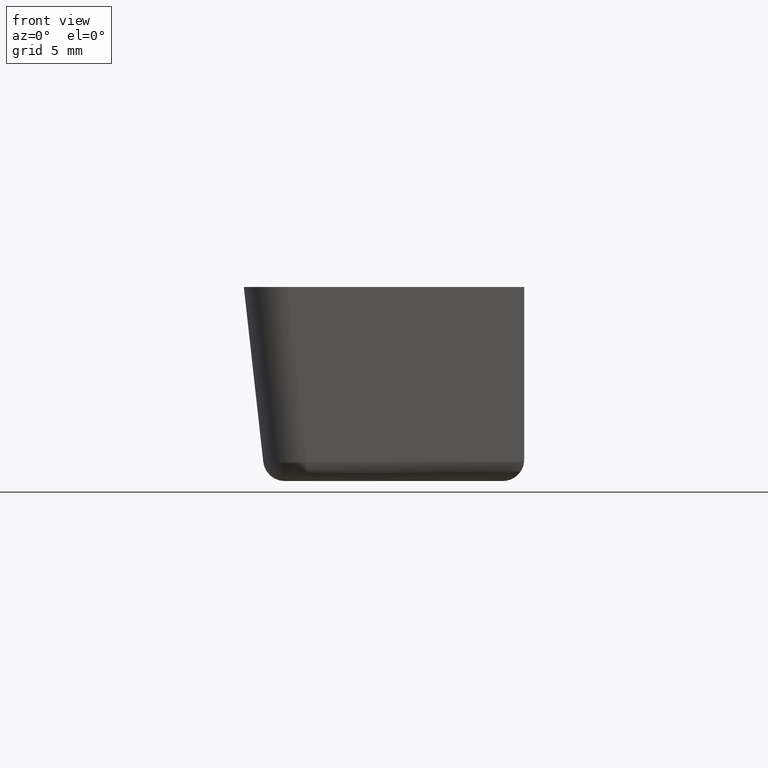
[diagram: clean part render]
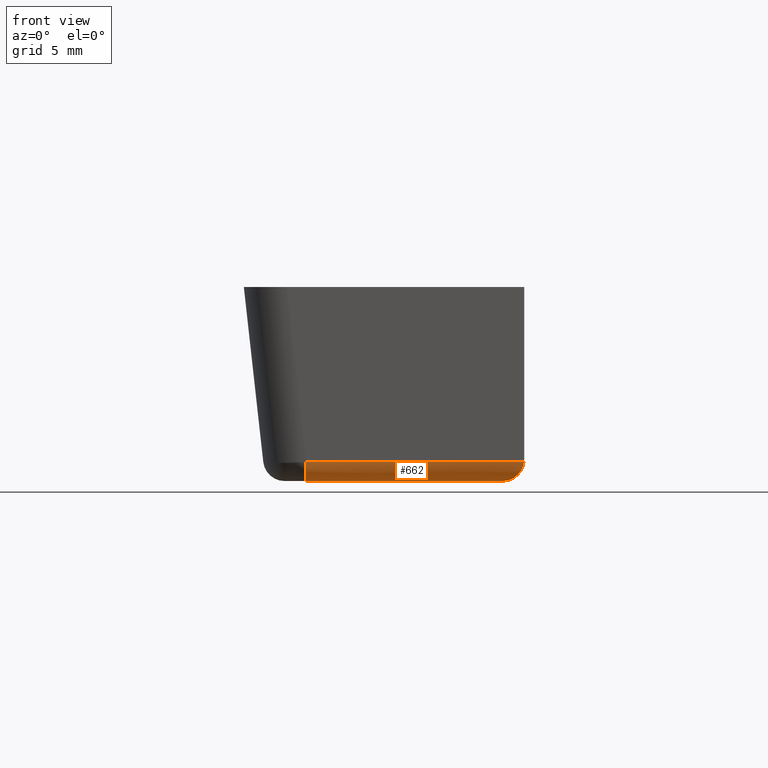
[diagram: same view with one face highlighted and labeled with its STEP entity id]
A machine part, front view. The second image highlights one B-rep face of the part: STEP entity #662.
In plain terms, the highlighted face is a freeform B-spline surface patch.
Its self-contained STEP definition (entity closure, byte-faithful):
#471=CARTESIAN_POINT('',(-186.111073581873510,-21.104957195149701,29.500000000000000));
#472=VERTEX_POINT('',#471);
#486=CARTESIAN_POINT('',(-186.111073581873510,-22.098840931261002,30.389568486864100));
#487=VERTEX_POINT('',#486);
#488=CARTESIAN_POINT('',(-186.111073581873510,-22.098840931260980,30.389568486864100));
#489=CARTESIAN_POINT('',(-186.111073581873570,-21.999999999999968,29.499999999999993));
#490=CARTESIAN_POINT('',(-186.111073581873510,-21.104957195149701,29.500000000000000));
#498=(BOUNDED_CURVE()B_SPLINE_CURVE(2,(#488,#489,#490),.UNSPECIFIED.,.F.,.U.)CURVE()GEOMETRIC_REPRESENTATION_ITEM()QUASI_UNIFORM_CURVE()RATIONAL_B_SPLINE_CURVE((1.0,0.745128013543947,1.0))REPRESENTATION_ITEM(''));
#499=EDGE_CURVE('',#487,#472,#498,.T.);
#618=CARTESIAN_POINT('',(-175.753492330938910,-22.101874528882821,30.421540904272160));
#619=CARTESIAN_POINT('',(-186.370013113146910,-22.101874528882821,30.421540904272160));
#620=CARTESIAN_POINT('',(-175.753492330938910,-22.024364417052997,29.436681554238490));
#621=CARTESIAN_POINT('',(-186.370013113146880,-22.024364417052997,29.436681554238490));
#622=CARTESIAN_POINT('',(-175.753492330938880,-21.038634808946583,29.502201753314669));
#623=CARTESIAN_POINT('',(-186.370013113146910,-21.038634808946583,29.502201753314669));
#631=(BOUNDED_SURFACE()B_SPLINE_SURFACE(1,2,((#618,#620,#622),(#619,#621,#623)),.UNSPECIFIED.,.F.,.F.,.U.)B_SPLINE_SURFACE_WITH_KNOTS((2,2),(3,3),(0.0,10.616520782207999),(0.0,0.991416946484800),.UNSPECIFIED.)GEOMETRIC_REPRESENTATION_ITEM()RATIONAL_B_SPLINE_SURFACE(((1.0,0.709620699357863,0.995015317845765),(1.0,0.709620699357863,0.995015317845765)))REPRESENTATION_ITEM('')SURFACE());
#632=CARTESIAN_POINT('',(-176.006116263888490,-22.098840931260948,30.389568486864100));
#633=VERTEX_POINT('',#632);
#634=CARTESIAN_POINT('',(-186.111073581873510,-22.098840931261002,30.389568486864100));
#635=CARTESIAN_POINT('',(-176.006116263888490,-22.098840931260948,30.389568486864100));
#636=QUASI_UNIFORM_CURVE('',1,(#634,#635),.UNSPECIFIED.,.F.,.U.);
#637=EDGE_CURVE('',#487,#633,#636,.T.);
#638=ORIENTED_EDGE('',*,*,#637,.F.);
#639=ORIENTED_EDGE('',*,*,#499,.T.);
#640=CARTESIAN_POINT('',(-177.0,-21.104957195149701,29.500000000000000));
#641=VERTEX_POINT('',#640);
#642=CARTESIAN_POINT('',(-177.0,-21.104957195149701,29.500000000000000));
#643=CARTESIAN_POINT('',(-186.111073581873510,-21.104957195149701,29.500000000000000));
#644=QUASI_UNIFORM_CURVE('',1,(#642,#643),.UNSPECIFIED.,.F.,.U.);
#645=EDGE_CURVE('',#641,#472,#644,.T.);
#646=ORIENTED_EDGE('',*,*,#645,.F.);
#647=CARTESIAN_POINT('',(-176.006116263888490,-22.098840931260948,30.389568486864100));
#648=CARTESIAN_POINT('',(-176.104957195149810,-21.999999999999964,29.500000000000004));
#649=CARTESIAN_POINT('',(-177.0,-21.104957195149701,29.500000000000000));
#657=(BOUNDED_CURVE()B_SPLINE_CURVE(2,(#647,#648,#649),.UNSPECIFIED.,.F.,.U.)CURVE()GEOMETRIC_REPRESENTATION_ITEM()QUASI_UNIFORM_CURVE()RATIONAL_B_SPLINE_CURVE((1.0,0.745128013543948,1.0))REPRESENTATION_ITEM(''));
#658=EDGE_CURVE('',#633,#641,#657,.T.);
#659=ORIENTED_EDGE('',*,*,#658,.F.);
#660=EDGE_LOOP('',(#638,#639,#646,#659));
#661=FACE_OUTER_BOUND('',#660,.T.);
#662=ADVANCED_FACE('',(#661),#631,.T.);